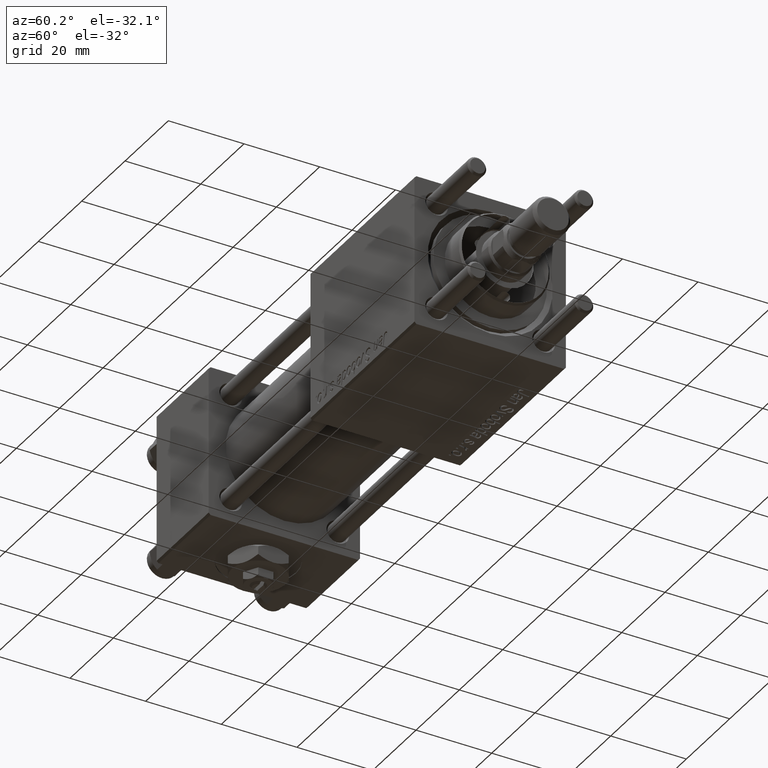
[diagram: clean part render]
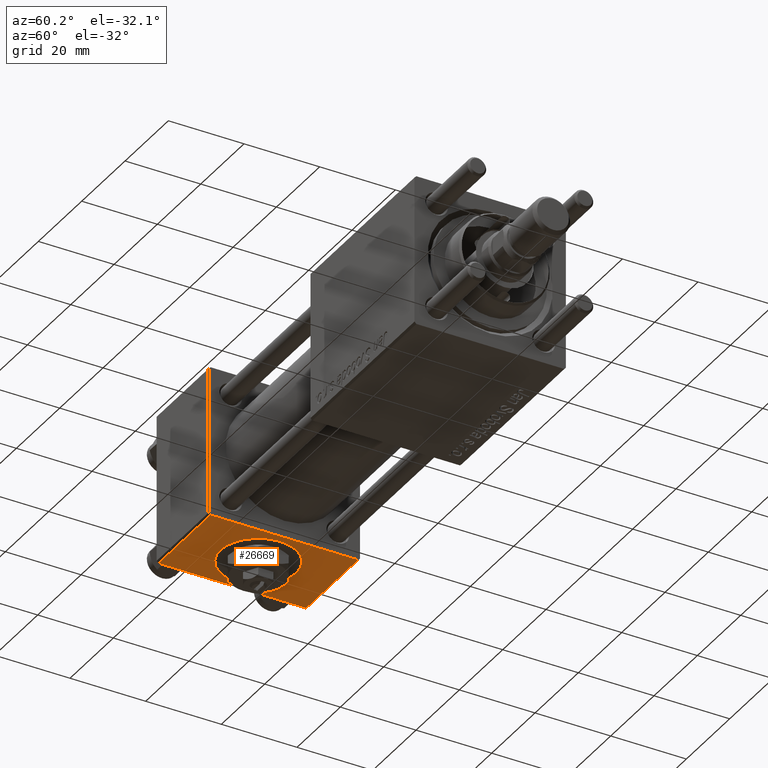
[diagram: same view with one face highlighted and labeled with its STEP entity id]
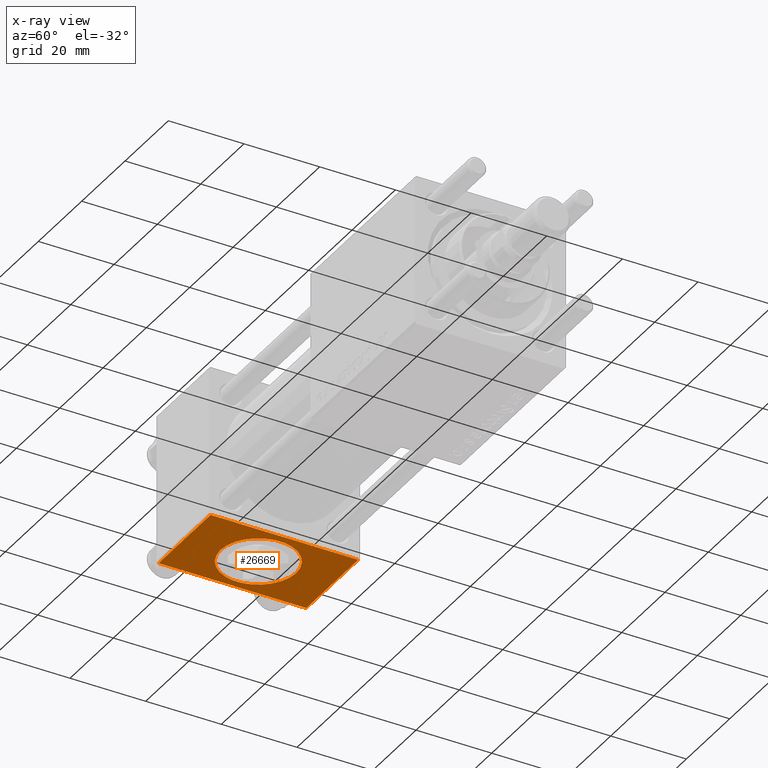
[diagram: x-ray of the same camera — body ghosted, the highlighted face saturated]
A machine part, auxiliary view. The second image highlights one B-rep face of the part: STEP entity #26669.
The next image is the same camera in x-ray: the body ghosted, the highlighted face saturated — about 0% of this face is hidden behind the body in this view.
In plain terms, the highlighted planar face has unit normal (0, -0, -1).
Its self-contained STEP definition (entity closure, byte-faithful):
#419 = EDGE_CURVE ( 'NONE', #39581, #35927, #57302, .T. ) ;
#1224 = EDGE_LOOP ( 'NONE', ( #54566, #47393, #14094, #5113 ) ) ;
#2579 = LINE ( 'NONE', #30052, #29418 ) ;
#4435 = CARTESIAN_POINT ( 'NONE',  ( 24.00000000000000000, 20.00000000000000000, -20.00000000000000711 ) ) ;
#5058 = EDGE_CURVE ( 'NONE', #35927, #39406, #44944, .T. ) ;
#5113 = ORIENTED_EDGE ( 'NONE', *, *, #15904, .T. ) ;
#5910 = CARTESIAN_POINT ( 'NONE',  ( 12.00000000000000000, 9.999999999999996447, -20.00000000000000355 ) ) ;
#6200 = VECTOR ( 'NONE', #48347, 1000.000000000000000 ) ;
#6667 = EDGE_LOOP ( 'NONE', ( #6821, #13855 ) ) ;
#6821 = ORIENTED_EDGE ( 'NONE', *, *, #25454, .F. ) ;
#7716 = CARTESIAN_POINT ( 'NONE',  ( 0.000000000000000000, -19.50000000000000711, -20.00000000000000000 ) ) ;
#8380 = CARTESIAN_POINT ( 'NONE',  ( 12.00000000000000000, -4.939023110930437544E-15, -20.00000000000000355 ) ) ;
#9791 = FACE_OUTER_BOUND ( 'NONE', #1224, .T. ) ;
#12792 = DIRECTION ( 'NONE',  ( -1.000000000000000000, 0.000000000000000000, 0.000000000000000000 ) ) ;
#13855 = ORIENTED_EDGE ( 'NONE', *, *, #48892, .F. ) ;
#14094 = ORIENTED_EDGE ( 'NONE', *, *, #5058, .T. ) ;
#15107 = EDGE_CURVE ( 'NONE', #39581, #25470, #2579, .T. ) ;
#15904 = EDGE_CURVE ( 'NONE', #39406, #25470, #48653, .T. ) ;
#16038 = VECTOR ( 'NONE', #12792, 1000.000000000000000 ) ;
#24547 = VECTOR ( 'NONE', #50303, 1000.000000000000000 ) ;
#25454 = EDGE_CURVE ( 'NONE', #43907, #25610, #30538, .T. ) ;
#25470 = VERTEX_POINT ( 'NONE', #48435 ) ;
#25610 = VERTEX_POINT ( 'NONE', #47788 ) ;
#26669 = ADVANCED_FACE ( 'NONE', ( #41763, #9791 ), #32488, .T. ) ;
#29418 = VECTOR ( 'NONE', #52185, 1000.000000000000000 ) ;
#30052 = CARTESIAN_POINT ( 'NONE',  ( 0.000000000000000000, 20.00000000000000000, -20.00000000000000711 ) ) ;
#30117 = CARTESIAN_POINT ( 'NONE',  ( 24.00000000000000000, 19.50000000000000711, -20.00000000000000711 ) ) ;
#30538 = CIRCLE ( 'NONE', #39112, 10.00000000000000178 ) ;
#31379 = DIRECTION ( 'NONE',  ( 0.000000000000000000, 1.000000000000000000, 0.000000000000000000 ) ) ;
#32488 = PLANE ( 'NONE',  #56346 ) ;
#35579 = DIRECTION ( 'NONE',  ( 0.000000000000000000, -1.734723475976806848E-16, -1.000000000000000000 ) ) ;
#35927 = VERTEX_POINT ( 'NONE', #45840 ) ;
#38113 = DIRECTION ( 'NONE',  ( 0.000000000000000000, -1.734723475976806848E-16, -1.000000000000000000 ) ) ;
#39112 = AXIS2_PLACEMENT_3D ( 'NONE', #8380, #35579, #31379 ) ;
#39406 = VERTEX_POINT ( 'NONE', #48869 ) ;
#39581 = VERTEX_POINT ( 'NONE', #47861 ) ;
#41475 = DIRECTION ( 'NONE',  ( 0.000000000000000000, -1.734723475976806848E-16, -1.000000000000000000 ) ) ;
#41763 = FACE_BOUND ( 'NONE', #6667, .T. ) ;
#43907 = VERTEX_POINT ( 'NONE', #5910 ) ;
#44944 = LINE ( 'NONE', #58379, #24547 ) ;
#45840 = CARTESIAN_POINT ( 'NONE',  ( 24.00000000000000000, 19.50000000000000711, -20.00000000000000711 ) ) ;
#46479 = CARTESIAN_POINT ( 'NONE',  ( 12.00000000000000000, -4.939023110930437544E-15, -20.00000000000000355 ) ) ;
#47393 = ORIENTED_EDGE ( 'NONE', *, *, #419, .T. ) ;
#47788 = CARTESIAN_POINT ( 'NONE',  ( 12.00000000000000178, -10.00000000000000711, -20.00000000000000355 ) ) ;
#47861 = CARTESIAN_POINT ( 'NONE',  ( 0.000000000000000000, 19.50000000000000711, -20.00000000000000711 ) ) ;
#48347 = DIRECTION ( 'NONE',  ( 1.000000000000000000, 0.000000000000000000, 0.000000000000000000 ) ) ;
#48435 = CARTESIAN_POINT ( 'NONE',  ( 0.000000000000000000, -19.50000000000000711, -20.00000000000000000 ) ) ;
#48653 = LINE ( 'NONE', #7716, #16038 ) ;
#48869 = CARTESIAN_POINT ( 'NONE',  ( 24.00000000000000000, -19.50000000000000711, -20.00000000000000000 ) ) ;
#48892 = EDGE_CURVE ( 'NONE', #25610, #43907, #53515, .T. ) ;
#50303 = DIRECTION ( 'NONE',  ( 0.000000000000000000, -1.000000000000000000, 1.734723475976807094E-16 ) ) ;
#52185 = DIRECTION ( 'NONE',  ( 0.000000000000000000, -1.000000000000000000, 1.734723475976807094E-16 ) ) ;
#53515 = CIRCLE ( 'NONE', #56420, 10.00000000000000178 ) ;
#54566 = ORIENTED_EDGE ( 'NONE', *, *, #15107, .F. ) ;
#54613 = DIRECTION ( 'NONE',  ( 0.000000000000000000, 1.000000000000000000, -1.734723475976806848E-16 ) ) ;
#56319 = DIRECTION ( 'NONE',  ( 0.000000000000000000, 1.000000000000000000, 0.000000000000000000 ) ) ;
#56346 = AXIS2_PLACEMENT_3D ( 'NONE', #4435, #41475, #54613 ) ;
#56420 = AXIS2_PLACEMENT_3D ( 'NONE', #46479, #38113, #56319 ) ;
#57302 = LINE ( 'NONE', #30117, #6200 ) ;
#58379 = CARTESIAN_POINT ( 'NONE',  ( 24.00000000000000000, 20.00000000000000000, -20.00000000000000711 ) ) ;